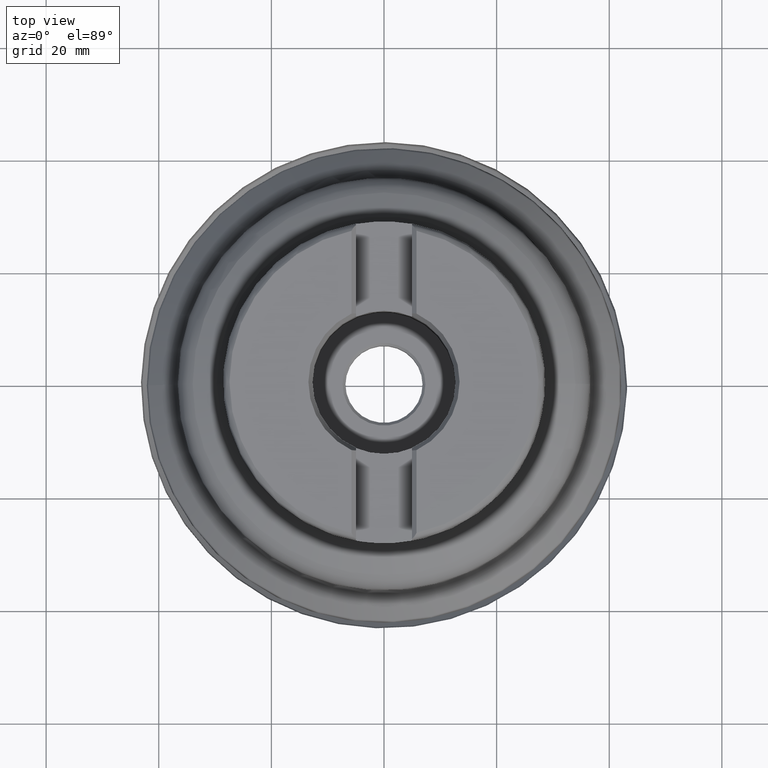
[diagram: clean part render]
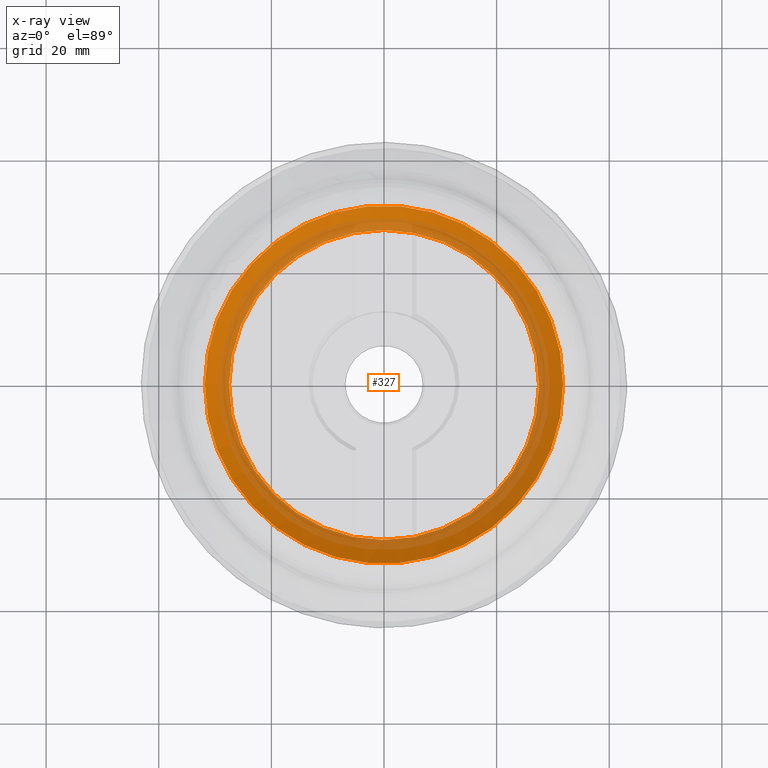
[diagram: x-ray — body ghosted, one internal face saturated and labeled with its STEP entity id]
A machine part, top view, then the same camera in x-ray: the body is ghosted and one INTERNAL B-rep face — a face not visible from any outside direction — is saturated and labeled: STEP entity #327.
In plain terms, the highlighted face is a SurfaceOfRevolution surface.
Its self-contained STEP definition (entity closure, byte-faithful):
#139=SURFACE_OF_REVOLUTION('',#234,#161);
#161=AXIS1_PLACEMENT('',#1945,#1393);
#234=LINE('',#1944,#262);
#262=VECTOR('',#1392,5.97815706176458);
#327=ADVANCED_FACE('',(#438,#439),#139,.F.);
#438=FACE_BOUND('',#554,.T.);
#439=FACE_BOUND('',#555,.T.);
#554=EDGE_LOOP('',(#748));
#555=EDGE_LOOP('',(#749));
#748=ORIENTED_EDGE('',*,*,#929,.T.);
#749=ORIENTED_EDGE('',*,*,#930,.F.);
#832=VERTEX_POINT('',#1936);
#833=VERTEX_POINT('',#1943);
#929=EDGE_CURVE('',#832,#832,#986,.T.);
#930=EDGE_CURVE('',#833,#833,#987,.T.);
#986=CIRCLE('',#1134,27.5246763727841);
#987=CIRCLE('',#1135,31.8029651382357);
#1134=AXIS2_PLACEMENT_3D('',#1935,#1387,#1388);
#1135=AXIS2_PLACEMENT_3D('',#1942,#1390,#1391);
#1387=DIRECTION('',(1.17145536458252E-15,0.,1.));
#1388=DIRECTION('',(1.,0.,-1.19746171025463E-15));
#1390=DIRECTION('',(1.17145536458252E-15,0.,1.));
#1391=DIRECTION('',(1.,0.,-1.14546529976588E-15));
#1392=DIRECTION('',(-0.098410243447623,0.709445436523866,-0.697855713296123));
#1393=DIRECTION('',(1.17145536458252E-15,0.,1.));
#1935=CARTESIAN_POINT('',(1.33296817542228E-14,0.,11.3787363626724));
#1936=CARTESIAN_POINT('',(27.5246763727842,0.,11.3787363626723));
#1942=CARTESIAN_POINT('',(1.82168660275098E-14,0.,15.5506275170816));
#1943=CARTESIAN_POINT('',(31.8029651382357,0.,15.5506275170815));
#1944=CARTESIAN_POINT('',(3.18245629625474,-31.6433335379253,15.5506274232064));
#1945=CARTESIAN_POINT('',(0.,0.,0.));